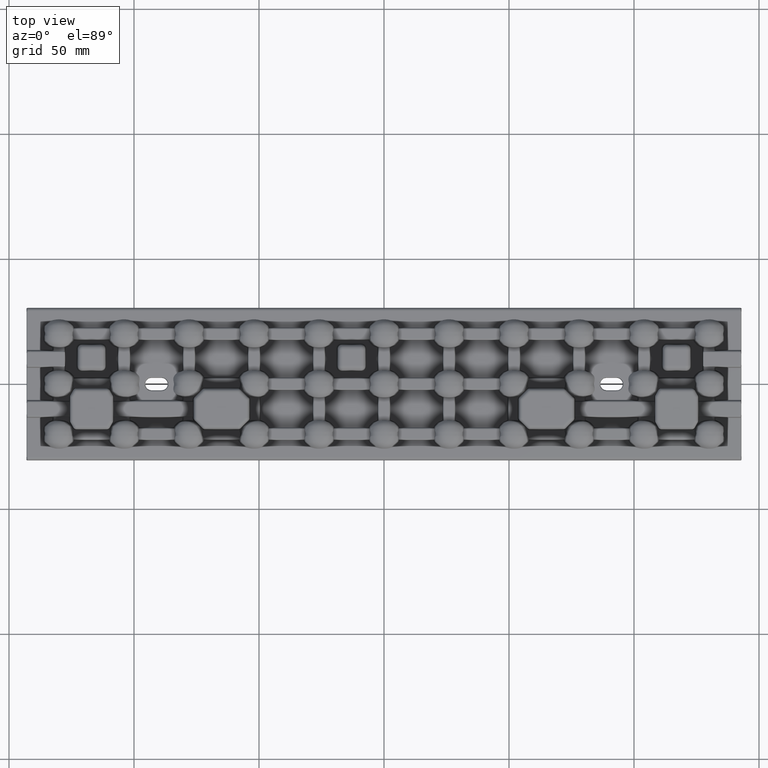
[diagram: clean part render]
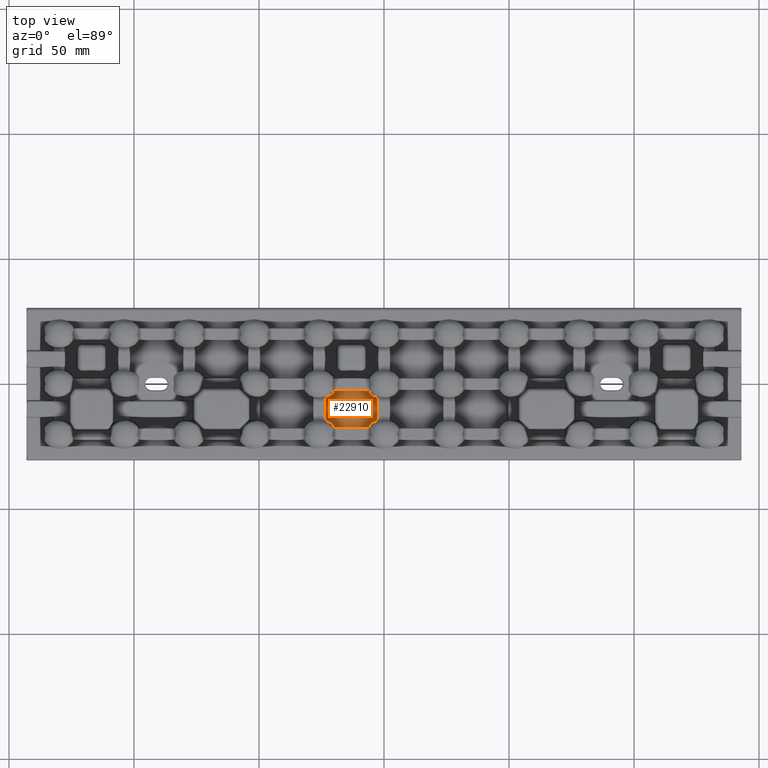
[diagram: same view with one face highlighted and labeled with its STEP entity id]
A machine part, top view. The second image highlights one B-rep face of the part: STEP entity #22910.
In plain terms, the highlighted planar face has unit normal (0, 0, 1).
Its self-contained STEP definition (entity closure, byte-faithful):
#118 = DIRECTION ( 'NONE',  ( -1.000000000000000000, 2.891205793294668500E-016, -0.0000000000000000000 ) ) ;
#379 = CARTESIAN_POINT ( 'NONE',  ( -4.434626444099697200, -15.29831029551940700, 2.000000000000000000 ) ) ;
#696 = CARTESIAN_POINT ( 'NONE',  ( -21.55477784582133400, -2.741422193701764000, 2.000000000000000000 ) ) ;
#707 = VERTEX_POINT ( 'NONE', #51528 ) ;
#1081 = LINE ( 'NONE', #68191, #33014 ) ;
#2387 = CARTESIAN_POINT ( 'NONE',  ( -6.001965807976449500, -3.101145066053587800, 1.999999999999999600 ) ) ;
#2661 = CARTESIAN_POINT ( 'NONE',  ( -4.901395290377148900, -4.362226130688446400, 2.000000000000000000 ) ) ;
#2746 = CARTESIAN_POINT ( 'NONE',  ( -19.87528335633126600, -2.741422193701764400, 2.000000000000000000 ) ) ;
#3020 = ORIENTED_EDGE ( 'NONE', *, *, #29876, .F. ) ;
#3616 = CARTESIAN_POINT ( 'NONE',  ( -19.87528335633127000, -17.25857780629830200, 2.000000000000000000 ) ) ;
#4132 = CARTESIAN_POINT ( 'NONE',  ( -20.67213282725300500, -15.99513840678128100, 2.000000000000012900 ) ) ;
#4327 = ORIENTED_EDGE ( 'NONE', *, *, #49520, .F. ) ;
#5396 = VECTOR ( 'NONE', #78087, 1000.000000000000000 ) ;
#5485 = EDGE_CURVE ( 'NONE', #48377, #47856, #59624, .T. ) ;
#6433 = CARTESIAN_POINT ( 'NONE',  ( -5.037278251010014300, -15.74780805109815600, 1.999999999999599400 ) ) ;
#6628 = ORIENTED_EDGE ( 'NONE', *, *, #15447, .F. ) ;
#7106 = CARTESIAN_POINT ( 'NONE',  ( -21.56497802673484200, -4.701466059788644200, 1.999999999999999100 ) ) ;
#8683 = CARTESIAN_POINT ( 'NONE',  ( -4.122195603418700400, -4.883365081212674300, 2.000000000000000400 ) ) ;
#10158 = CARTESIAN_POINT ( 'NONE',  ( -21.55683143242845600, -15.30358294954010600, 1.999999999999979100 ) ) ;
#11711 = VECTOR ( 'NONE', #118, 1000.000000000000000 ) ;
#12114 = CARTESIAN_POINT ( 'NONE',  ( -2.741422193701769800, -14.53910680023599900, 2.000000000000000000 ) ) ;
#12478 = CARTESIAN_POINT ( 'NONE',  ( -5.444758044121718900, -16.13689224558565600, 2.000000000000089300 ) ) ;
#13172 = CARTESIAN_POINT ( 'NONE',  ( -20.96207550173568600, -4.251638829574925900, 1.999999999999083200 ) ) ;
#13726 = VERTEX_POINT ( 'NONE', #19521 ) ;
#14497 = CARTESIAN_POINT ( 'NONE',  ( -5.810783004713310400, -3.419848055604597800, 2.000000000000021300 ) ) ;
#14611 = DIRECTION ( 'NONE',  ( 1.000000000000000000, -1.652117596168382100E-016, -0.0000000000000000000 ) ) ;
#14754 = CARTESIAN_POINT ( 'NONE',  ( -3.099837698383868900, -5.346573199022683900, 2.000000000000001300 ) ) ;
#15447 = EDGE_CURVE ( 'NONE', #48377, #35475, #56055, .T. ) ;
#16035 = EDGE_CURVE ( 'NONE', #707, #39773, #32233, .T. ) ;
#16249 = CARTESIAN_POINT ( 'NONE',  ( -22.55283859537104600, -14.78983170404565200, 2.000000000000000000 ) ) ;
#17791 = EDGE_CURVE ( 'NONE', #40856, #47856, #54086, .T. ) ;
#18175 = VECTOR ( 'NONE', #14611, 1000.000000000000000 ) ;
#18286 = CARTESIAN_POINT ( 'NONE',  ( -2.741422193701769800, -14.53910680023599900, 2.000000000000000000 ) ) ;
#18552 = CARTESIAN_POINT ( 'NONE',  ( -5.794694654549823000, -16.58140207693439200, 1.999999999999999600 ) ) ;
#19254 = CARTESIAN_POINT ( 'NONE',  ( -20.55492666825012500, -3.862765874825243800, 2.000000000000066600 ) ) ;
#19521 = CARTESIAN_POINT ( 'NONE',  ( -23.25857780629830900, -14.53910680610574200, 2.000000000000000000 ) ) ;
#20030 = ORIENTED_EDGE ( 'NONE', *, *, #17791, .F. ) ;
#21575 = FACE_OUTER_BOUND ( 'NONE', #48212, .T. ) ;
#21894 = ORIENTED_EDGE ( 'NONE', *, *, #16035, .T. ) ;
#22295 = CARTESIAN_POINT ( 'NONE',  ( -23.25857780629830900, -14.53910680610574200, 2.000000000000000000 ) ) ;
#22910 = ADVANCED_FACE ( 'NONE', ( #21575 ), #62077, .T. ) ;
#24590 = CARTESIAN_POINT ( 'NONE',  ( -6.063345104578120400, -17.07872782598575500, 2.000000000000000000 ) ) ;
#24993 = CARTESIAN_POINT ( 'NONE',  ( -23.25857780629830900, -5.460893193894306400, 2.000000000000000000 ) ) ;
#25263 = CARTESIAN_POINT ( 'NONE',  ( -20.20498798753637400, -3.418097587810492700, 1.999999999999996700 ) ) ;
#26076 = DIRECTION ( 'NONE',  ( -0.0000000000000000000, -1.000000000000000000, 0.0000000000000000000 ) ) ;
#26089 = DIRECTION ( 'NONE',  ( 0.0000000000000000000, 0.0000000000000000000, 1.000000000000000000 ) ) ;
#26553 = CARTESIAN_POINT ( 'NONE',  ( -6.124716582849451600, -2.741422193701768400, 2.000000000000000000 ) ) ;
#27765 = CARTESIAN_POINT ( 'NONE',  ( -23.25857780629830900, -5.460893193894306400, 2.000000000000000000 ) ) ;
#28150 = CARTESIAN_POINT ( 'NONE',  ( -6.124716582849506700, -17.25857780629830500, 2.000000000000000000 ) ) ;
#29876 = EDGE_CURVE ( 'NONE', #707, #13726, #50632, .T. ) ;
#31260 = CARTESIAN_POINT ( 'NONE',  ( -19.93663810782680600, -2.921223152124725200, 2.000000000000004000 ) ) ;
#31356 = B_SPLINE_CURVE_WITH_KNOTS ( 'NONE', 3,
 ( #18286, #54217, #72523, #36340, #379, #42456, #6433, #48454, #12478, #54498, #18552, #60520, #24590, #66649 ),
 .UNSPECIFIED., .F., .F.,
 ( 4, 2, 2, 2, 2, 2, 4 ),
 ( 2.776912483567713300E-018, 0.001111486230891812900, 0.002222972461783621500, 0.002778715577229527400, 0.003334458692675433300, 0.003890201808121339600, 0.004445944923567245500 ),
 .UNSPECIFIED. ) ;
#32233 = LINE ( 'NONE', #32431, #18175 ) ;
#32431 = CARTESIAN_POINT ( 'NONE',  ( -4.445222154178616800, -17.25857780629830500, 2.000000000000000000 ) ) ;
#32565 = CARTESIAN_POINT ( 'NONE',  ( -5.452276510499310700, -3.854904397538709800, 2.000000000000021800 ) ) ;
#33014 = VECTOR ( 'NONE', #26076, 1000.000000000000000 ) ;
#34059 = CARTESIAN_POINT ( 'NONE',  ( -20.01550671239736100, -16.90905175005574200, 2.000000000000000000 ) ) ;
#35022 = ORIENTED_EDGE ( 'NONE', *, *, #77998, .T. ) ;
#35475 = VERTEX_POINT ( 'NONE', #50718 ) ;
#36340 = CARTESIAN_POINT ( 'NONE',  ( -4.113795406821415300, -15.11223766319924200, 2.000000000000000900 ) ) ;
#37047 = CARTESIAN_POINT ( 'NONE',  ( -22.55359204973016300, -5.210388804376619600, 2.000000000000001800 ) ) ;
#38653 = CARTESIAN_POINT ( 'NONE',  ( -5.046067651245893500, -4.244699303047351400, 2.000000000000606600 ) ) ;
#39773 = VERTEX_POINT ( 'NONE', #28150 ) ;
#40139 = CARTESIAN_POINT ( 'NONE',  ( -20.31233109672653500, -16.43025438768087900, 2.000000000000012900 ) ) ;
#40856 = VERTEX_POINT ( 'NONE', #27765 ) ;
#42456 = CARTESIAN_POINT ( 'NONE',  ( -4.889378979977091300, -15.62834294185139200, 2.000000000000000000 ) ) ;
#43146 = CARTESIAN_POINT ( 'NONE',  ( -21.88596688510803600, -4.887638794906115100, 2.000000000000001800 ) ) ;
#44697 = CARTESIAN_POINT ( 'NONE',  ( -4.449376383559958900, -4.692317974367517400, 2.000000000000000000 ) ) ;
#46210 = CARTESIAN_POINT ( 'NONE',  ( -20.94982299348616600, -15.74599484345427800, 1.999999999999979100 ) ) ;
#47686 = EDGE_CURVE ( 'NONE', #53716, #35475, #53358, .T. ) ;
#47856 = VERTEX_POINT ( 'NONE', #2746 ) ;
#48212 = EDGE_LOOP ( 'NONE', ( #4327, #74084, #6628, #60348, #20030, #35022, #3020, #21894 ) ) ;
#48377 = VERTEX_POINT ( 'NONE', #57522 ) ;
#48454 = CARTESIAN_POINT ( 'NONE',  ( -5.314628397375083900, -16.00192282275648000, 1.999999999999599400 ) ) ;
#49157 = CARTESIAN_POINT ( 'NONE',  ( -21.10991657012199200, -4.371114041887614700, 1.999999999999998700 ) ) ;
#49520 = EDGE_CURVE ( 'NONE', #53716, #39773, #31356, .T. ) ;
#50632 = B_SPLINE_CURVE_WITH_KNOTS ( 'NONE', 3,
 ( #3616, #57974, #34059, #76290, #40139, #4132, #46210, #10158, #52197, #16249, #58224, #22295 ),
 .UNSPECIFIED., .F., .F.,
 ( 4, 2, 2, 2, 2, 4 ),
 ( 3.176505583166473500E-015, 0.0005610143110317126300, 0.001122028622060248800, 0.002244057244117314300, 0.003366085866174379200, 0.004488114488231444500 ),
 .UNSPECIFIED. ) ;
#50718 = CARTESIAN_POINT ( 'NONE',  ( -2.741422193701767500, -5.460893199764026200, 2.000000000000000000 ) ) ;
#50742 = CARTESIAN_POINT ( 'NONE',  ( -3.448362923596883800, -5.209766551515524000, 2.000000000000000400 ) ) ;
#51528 = CARTESIAN_POINT ( 'NONE',  ( -19.87528335633127000, -17.25857780629830200, 2.000000000000000000 ) ) ;
#52197 = CARTESIAN_POINT ( 'NONE',  ( -21.88221023319778200, -15.11432198691960600, 2.000000000000000400 ) ) ;
#53358 = LINE ( 'NONE', #59732, #5396 ) ;
#53716 = VERTEX_POINT ( 'NONE', #12114 ) ;
#54086 = B_SPLINE_CURVE_WITH_KNOTS ( 'NONE', 3,
 ( #24993, #60951, #37047, #43146, #7106, #49157, #13172, #55169, #19254, #61220, #25263, #67324, #31260, #73484 ),
 .UNSPECIFIED., .F., .F.,
 ( 4, 2, 2, 2, 2, 2, 4 ),
 ( 8.673617379884035500E-019, 0.001111915370787537200, 0.002223830741575073500, 0.002779788426968845300, 0.003335746112362617600, 0.003891703797756388600, 0.004447661483150160000 ),
 .UNSPECIFIED. ) ;
#54217 = CARTESIAN_POINT ( 'NONE',  ( -3.099620021350052700, -14.65335737083734300, 1.999999999999999100 ) ) ;
#54498 = CARTESIAN_POINT ( 'NONE',  ( -5.684401792754250900, -16.42591860606159000, 2.000000000000089300 ) ) ;
#55169 = CARTESIAN_POINT ( 'NONE',  ( -20.68499415953875700, -3.997692294059449500, 1.999999999999083200 ) ) ;
#56055 = B_SPLINE_CURVE_WITH_KNOTS ( 'NONE', 3,
 ( #26553, #2387, #14497, #32565, #74794, #38653, #2661, #44697, #8683, #50742, #14754, #56742 ),
 .UNSPECIFIED., .F., .F.,
 ( 4, 2, 2, 2, 2, 4 ),
 ( 1.866843767249396300E-017, 0.001114944841972087000, 0.001672417262958120600, 0.002229889683944154400, 0.003344834525916219900, 0.004459779367888286300 ),
 .UNSPECIFIED. ) ;
#56742 = CARTESIAN_POINT ( 'NONE',  ( -2.741422193701767500, -5.460893199764026200, 2.000000000000000000 ) ) ;
#57522 = CARTESIAN_POINT ( 'NONE',  ( -6.124716582849451600, -2.741422193701768400, 2.000000000000000000 ) ) ;
#57974 = CARTESIAN_POINT ( 'NONE',  ( -19.93656171197620700, -17.07900072699892400, 2.000000000001284800 ) ) ;
#58224 = CARTESIAN_POINT ( 'NONE',  ( -22.90041400407166700, -14.65334652589088700, 2.000000000000001300 ) ) ;
#59624 = LINE ( 'NONE', #696, #11711 ) ;
#59732 = CARTESIAN_POINT ( 'NONE',  ( -2.741422193701767500, -4.445222154178533300, 2.000000000000000000 ) ) ;
#60348 = ORIENTED_EDGE ( 'NONE', *, *, #5485, .T. ) ;
#60520 = CARTESIAN_POINT ( 'NONE',  ( -5.984002390659861200, -16.90785414885552000, 1.999999999999998700 ) ) ;
#60951 = CARTESIAN_POINT ( 'NONE',  ( -22.90039341086883700, -5.346646905713059000, 1.999999999999999600 ) ) ;
#61220 = CARTESIAN_POINT ( 'NONE',  ( -20.31529068126583200, -3.573672134980303100, 2.000000000000067100 ) ) ;
#62077 = PLANE ( 'NONE',  #64157 ) ;
#64157 = AXIS2_PLACEMENT_3D ( 'NONE', #74065, #26089, #68206 ) ;
#66649 = CARTESIAN_POINT ( 'NONE',  ( -6.124716582849506700, -17.25857780629830500, 2.000000000000000000 ) ) ;
#67324 = CARTESIAN_POINT ( 'NONE',  ( -20.01592598449671500, -3.091975499607265500, 1.999999999999996700 ) ) ;
#68191 = CARTESIAN_POINT ( 'NONE',  ( -23.25857780629830900, -15.55477784582137700, 2.000000000000000000 ) ) ;
#68206 = DIRECTION ( 'NONE',  ( -1.000000000000000000, 0.0000000000000000000, 0.0000000000000000000 ) ) ;
#72523 = CARTESIAN_POINT ( 'NONE',  ( -3.446374229641099500, -14.78960352435128600, 2.000000000000001300 ) ) ;
#73484 = CARTESIAN_POINT ( 'NONE',  ( -19.87528335633126600, -2.741422193701764400, 2.000000000000000000 ) ) ;
#74065 = CARTESIAN_POINT ( 'NONE',  ( 0.0000000000000000000, 0.0000000000000000000, 2.000000000000000000 ) ) ;
#74084 = ORIENTED_EDGE ( 'NONE', *, *, #47686, .T. ) ;
#74794 = CARTESIAN_POINT ( 'NONE',  ( -5.321002825248374500, -3.991644632034979900, 2.000000000000606200 ) ) ;
#76290 = CARTESIAN_POINT ( 'NONE',  ( -20.20288739645397800, -16.58522585287654400, 2.000000000000000900 ) ) ;
#77998 = EDGE_CURVE ( 'NONE', #40856, #13726, #1081, .T. ) ;
#78087 = DIRECTION ( 'NONE',  ( 2.023844055306265400E-016, 1.000000000000000000, -0.0000000000000000000 ) ) ;